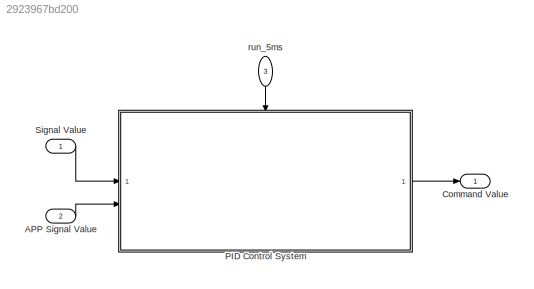
MODEL slx_2923967bd200
KIND model
CONFIG AbsTol = auto
CONFIG EnableMultiTasking = off
CONFIG FixedStep = 0.005
CONFIG MaxStep = auto
CONFIG MinStep = auto
CONFIG RelTol = 1e-3
CONFIG SampleTimeConstraint = Unconstrained
CONFIG SolverName = FixedStepDiscrete
CONFIG StartTime = 0.0
CONFIG StopTime = 10.0
BLOCK [Inport] APP Signal Value
  OutDataTypeStr = single
  Port = 2
  PortDimensions = 1
  SamplingMode = Sample based
  SignalType = real
BLOCK [Outport] Command Value
  OutDataTypeStr = single
  PortDimensions = 1
  SamplingMode = Sample based
  SignalType = real
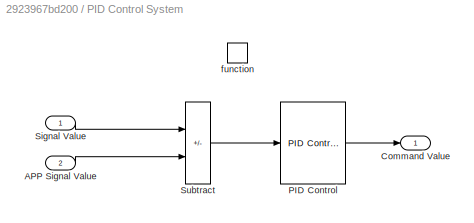
BLOCK [SubSystem] PID Control System
  SystemSampleTime = 0.005
  TreatAsAtomicUnit = on
BLOCK [Inport] PID Control System/APP Signal Value
  Port = 2
BLOCK [Outport] PID Control System/Command Value
BLOCK [Reference] PID Control System/PID Control  REF=slpidlib/PID Controller
  SourceBlock = slpidlib/PID Controller
  SourceType = PID 1dof
BLOCK [Inport] PID Control System/Signal Value
BLOCK [Sum] PID Control System/Subtract
  IconShape = rectangular
  Inputs = -+
BLOCK [TriggerPort] PID Control System/function
  PortDimensions = 1
  SampleTime = 0.01
  SampleTimeType = periodic
  StatesWhenEnabling = held
  TriggerType = function-call
  VariantControl = (inherit)
BLOCK [Inport] Signal Value
  OutDataTypeStr = single
  PortDimensions = 1
  SamplingMode = Sample based
  SignalType = real
BLOCK [Inport] run_5ms
  NameLocation = left
  OutputFunctionCall = on
  Port = 3
  SampleTime = 0.01
LINE APP Signal Value:1 -> PID Control System:2
LINE PID Control System/APP Signal Value:1 -> PID Control System/Subtract:2
LINE PID Control System/PID Control:1 -> PID Control System/Command Value:1
LINE PID Control System/Signal Value:1 -> PID Control System/Subtract:1
LINE PID Control System/Subtract:1 -> PID Control System/PID Control:1
LINE PID Control System:1 -> Command Value:1
LINE Signal Value:1 -> PID Control System:1
LINE run_5ms:1 -> PID Control System:trigger
